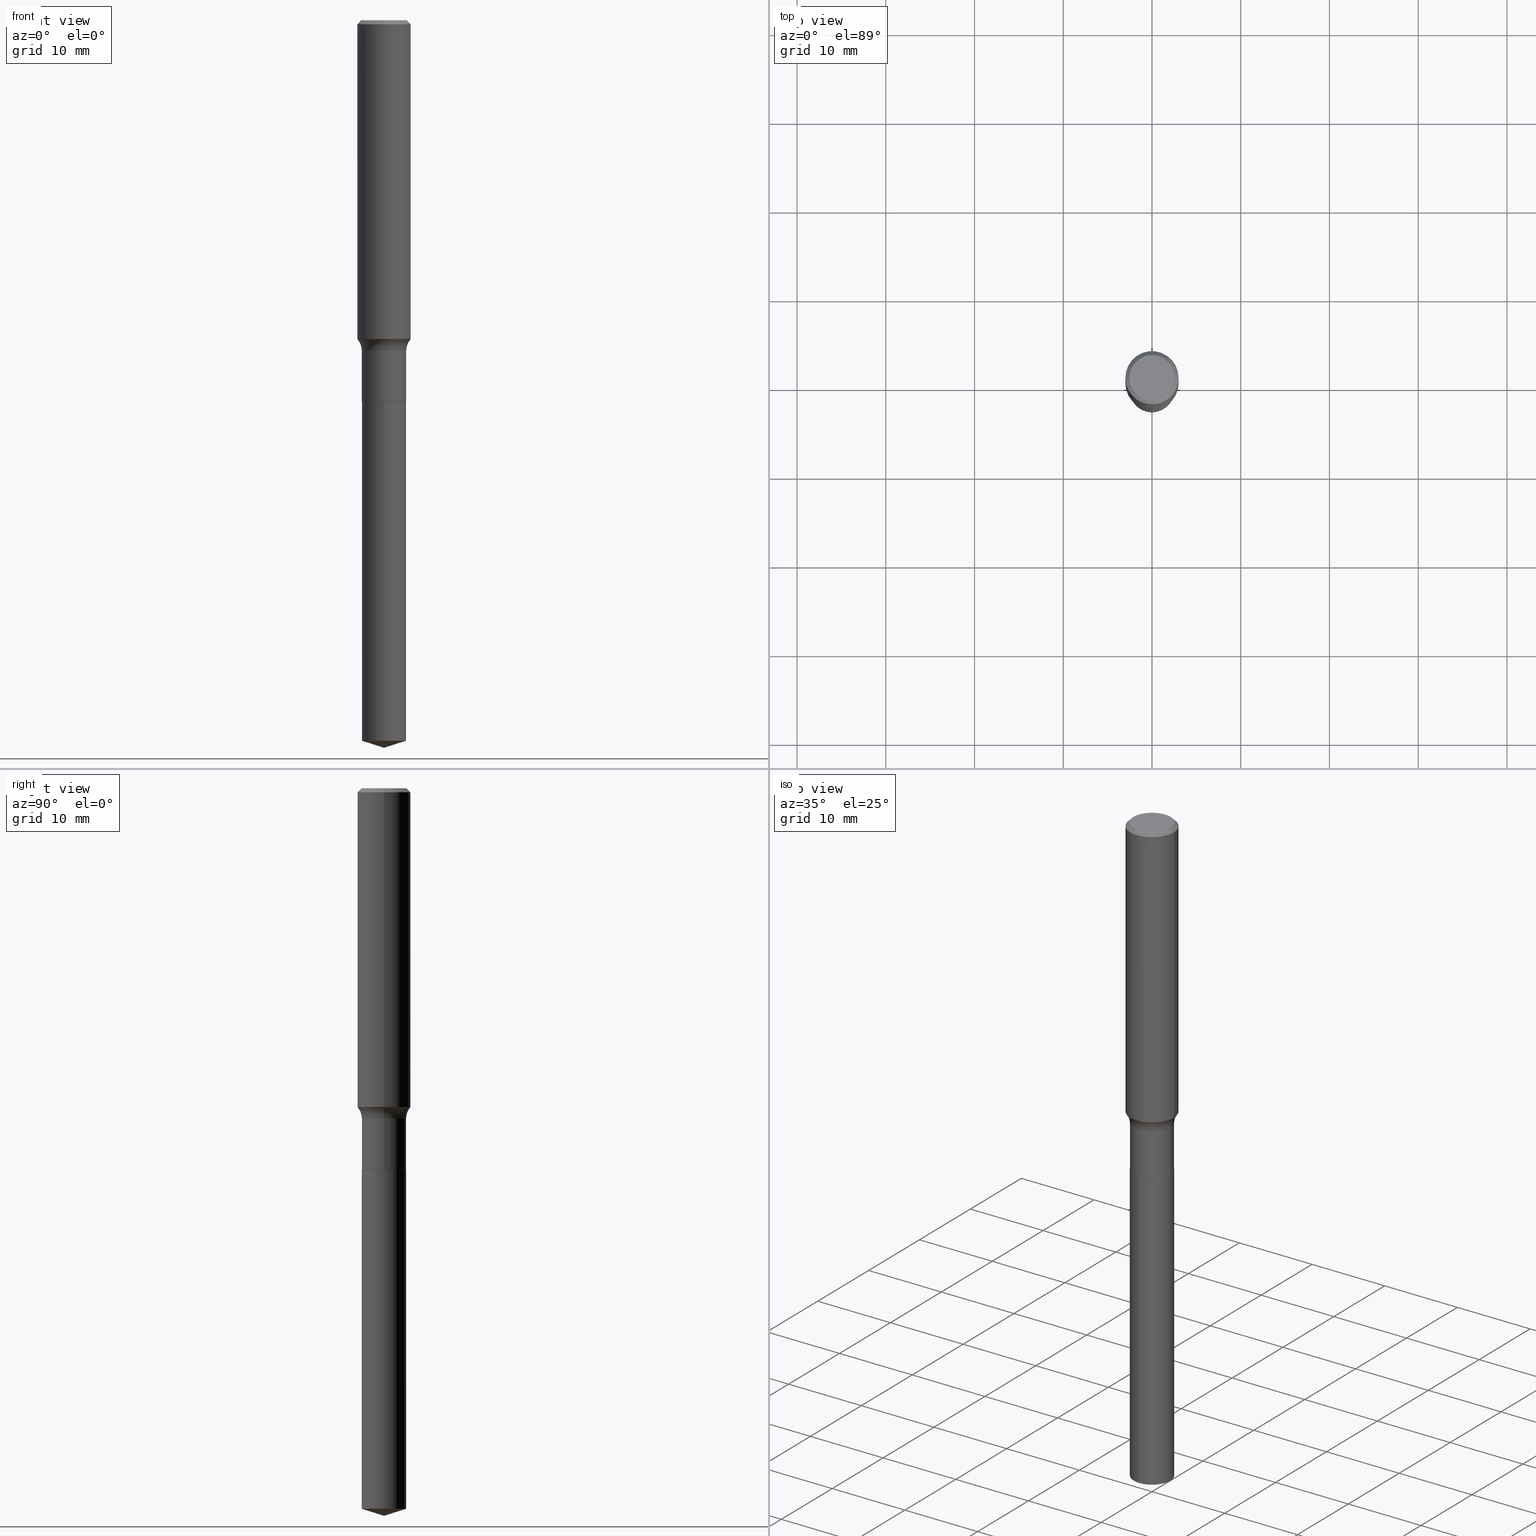
[diagram: canonical four-view strip — front | top / right | iso, engineering-drawing reading convention]
A machine part, canonical four-view strip (front | top / right | iso — engineering-drawing reading convention). The complete STEP part file that produces these views, byte-faithful:
ISO-10303-21;
HEADER;
FILE_DESCRIPTION (( 'STEP AP203' ),
    '1' );
FILE_NAME ('64120.STEP',
    '2024-04-19T15:15:44',
    ( '' ),
    ( '' ),
    'SwSTEP 2.0',
    'SolidWorks 2023',
    '' );
FILE_SCHEMA (( 'CONFIG_CONTROL_DESIGN' ));
ENDSEC;

DATA;
#1 = DIRECTION ( 'NONE',  ( -2.445468806185136597E-29, 3.491481338843145583E-15, 1.000000000000000000 ) ) ;
#2 = FACE_OUTER_BOUND ( 'NONE', #373, .T. ) ;
#3 = DIRECTION ( 'NONE',  ( -6.982962677686265922E-15, -1.000000000000000000, 2.774858297271979165E-15 ) ) ;
#4 = CONICAL_SURFACE ( 'NONE', #132, 0.1180999999999999966, 0.7853981633974453924 ) ;
#5 = CARTESIAN_POINT ( 'NONE',  ( 4.139934141990818357E-29, -5.910728758527561864E-15, -1.692900000000000071 ) ) ;
#6 = CARTESIAN_POINT ( 'NONE',  ( 0.000000000000000000, 0.000000000000000000, 0.000000000000000000 ) ) ;
#7 = PRODUCT_DEFINITION_SHAPE ( 'NONE', 'NONE',  #8 ) ;
#8 = PRODUCT_DEFINITION ( 'UNKNOWN', '', #452, #16 ) ;
#9 = DIRECTION ( 'NONE',  ( -1.000000000000000000, 7.105427357601001859E-15, 0.000000000000000000 ) ) ;
#10 = VERTEX_POINT ( 'NONE', #50 ) ;
#11 = VECTOR ( 'NONE', #182, 39.37007874015748143 ) ;
#12 = AXIS2_PLACEMENT_3D ( 'NONE', #260, #312, #301 ) ;
#13 = CARTESIAN_POINT ( 'NONE',  ( 4.139934141990818357E-29, -5.910728758527561864E-15, -1.692900000000000071 ) ) ;
#14 = ADVANCED_FACE ( 'NONE', ( #202 ), #322, .T. ) ;
#15 = ORIENTED_EDGE ( 'NONE', *, *, #200, .T. ) ;
#16 = DESIGN_CONTEXT ( 'detailed design', #418, 'design' ) ;
#17 = CYLINDRICAL_SURFACE ( 'NONE', #68, 0.09844999999999999585 ) ;
#18 = ORIENTED_EDGE ( 'NONE', *, *, #383, .F. ) ;
#19 = DIRECTION ( 'NONE',  ( -2.445468806185136877E-29, 3.491481338843145188E-15, 1.000000000000000000 ) ) ;
#20 = AXIS2_PLACEMENT_3D ( 'NONE', #6, #40, #303 ) ;
#21 = APPROVAL_ROLE ( '' ) ;
#22 = DIRECTION ( 'NONE',  ( 1.000000000000000000, 0.000000000000000000, 0.000000000000000000 ) ) ;
#23 = DATE_AND_TIME ( #247, #270 ) ;
#24 = EDGE_CURVE ( 'NONE', #407, #276, #267, .T. ) ;
#25 = CARTESIAN_POINT ( 'NONE',  ( 0.000000000000000000, 0.000000000000000000, 0.000000000000000000 ) ) ;
#26 = CC_DESIGN_PERSON_AND_ORGANIZATION_ASSIGNMENT ( #371, #290, ( #382 ) ) ;
#27 = AXIS2_PLACEMENT_3D ( 'NONE', #191, #347, #111 ) ;
#28 = ORIENTED_EDGE ( 'NONE', *, *, #122, .F. ) ;
#29 = DATE_TIME_ROLE ( 'creation_date' ) ;
#30 = DIRECTION ( 'NONE',  ( -2.445468806185136877E-29, 3.491481338843145188E-15, 1.000000000000000000 ) ) ;
#31 = EDGE_LOOP ( 'NONE', ( #323, #279, #296 ) ) ;
#32 = DIRECTION ( 'NONE',  ( -2.445514466918933997E-29, 3.491415950073500322E-15, 1.000000000000000000 ) ) ;
#33 = CARTESIAN_POINT ( 'NONE',  ( -0.09844999999999995421, -4.815090877279988422E-15, -1.466500000000000137 ) ) ;
#34 = CLOSED_SHELL ( 'NONE', ( #72, #56, #150, #169, #105, #137, #355, #14, #253, #162, #289, #300 ) ) ;
#35 = LOCAL_TIME ( 11, 15, 44.00000000000000000, #175 ) ;
#36 = DIRECTION ( 'NONE',  ( 1.000000000000000000, -6.982962677686266711E-15, 0.000000000000000000 ) ) ;
#37 = FACE_OUTER_BOUND ( 'NONE', #481, .T. ) ;
#38 = EDGE_CURVE ( 'NONE', #120, #379, #174, .T. ) ;
#39 = CARTESIAN_POINT ( 'NONE',  ( -6.874726756181714407E-16, -0.09845000000000590779, -1.692899999999999849 ) ) ;
#40 = DIRECTION ( 'NONE',  ( -2.445468806185136597E-29, 3.491481338843145583E-15, 1.000000000000000000 ) ) ;
#41 = EDGE_LOOP ( 'NONE', ( #98, #352, #488, #442 ) ) ;
#42 = APPROVAL ( #181, 'UNSPECIFIED' ) ;
#43 = AXIS2_PLACEMENT_3D ( 'NONE', #94, #173, #246 ) ;
#44 = VECTOR ( 'NONE', #75, 39.37007874015748143 ) ;
#45 = FACE_OUTER_BOUND ( 'NONE', #475, .T. ) ;
#46 = DIRECTION ( 'NONE',  ( 1.000000000000000000, -6.982962677686268288E-15, 4.883557194083114022E-29 ) ) ;
#47 = EDGE_LOOP ( 'NONE', ( #277, #362 ) ) ;
#48 = EDGE_CURVE ( 'NONE', #276, #407, #51, .T. ) ;
#49 = DIRECTION ( 'NONE',  ( -2.445468806185136597E-29, 3.491481338843145583E-15, 1.000000000000000000 ) ) ;
#50 = CARTESIAN_POINT ( 'NONE',  ( -0.09844999999999999585, -4.815090877279988422E-15, -1.692400000000000126 ) ) ;
#51 = CIRCLE ( 'NONE', #258, 0.09844999999999995421 ) ;
#52 = AXIS2_PLACEMENT_3D ( 'NONE', #93, #167, #197 ) ;
#53 = CARTESIAN_POINT ( 'NONE',  ( 0.09844999999999998197, -6.874726756182128559E-16, 4.800596035771097813E-30 ) ) ;
#54 = ORIENTED_EDGE ( 'NONE', *, *, #469, .F. ) ;
#55 = CARTESIAN_POINT ( 'NONE',  ( -8.838532006829453143E-28, 1.261858720607650357E-13, 36.14177874015747705 ) ) ;
#56 = ADVANCED_FACE ( 'NONE', ( #73 ), #4, .T. ) ;
#57 = PERSON_AND_ORGANIZATION ( #342, #60 ) ;
#58 = APPLICATION_CONTEXT ( 'configuration controlled 3d designs of mechanical parts and assemblies' ) ;
#59 = CALENDAR_DATE ( 2024, 19, 4 ) ;
#60 = ORGANIZATION ( 'UNSPECIFIED', 'UNSPECIFIED', '' ) ;
#61 = ORIENTED_EDGE ( 'NONE', *, *, #62, .T. ) ;
#62 = EDGE_CURVE ( 'NONE', #120, #485, #223, .T. ) ;
#63 = APPROVAL_ROLE ( '' ) ;
#64 = CARTESIAN_POINT ( 'NONE',  ( 0.09844999999999999585, -6.596455693476352920E-15, -1.692400000000000126 ) ) ;
#65 = PERSON_AND_ORGANIZATION_ROLE ( 'design_supplier' ) ;
#66 = ORIENTED_EDGE ( 'NONE', *, *, #397, .T. ) ;
#67 = APPROVAL_STATUS ( 'not_yet_approved' ) ;
#68 = AXIS2_PLACEMENT_3D ( 'NONE', #275, #438, #434 ) ;
#69 = ORIENTED_EDGE ( 'NONE', *, *, #365, .F. ) ;
#70 = DIRECTION ( 'NONE',  ( -1.000000000000000000, 6.982962677686266711E-15, 0.000000000000000000 ) ) ;
#71 = CARTESIAN_POINT ( 'NONE',  ( 0.1764499999999999680, -6.352401147891214888E-15, -1.466500000000000137 ) ) ;
#72 = ADVANCED_FACE ( 'NONE', ( #2 ), #165, .T. ) ;
#73 = FACE_OUTER_BOUND ( 'NONE', #104, .T. ) ;
#74 = DIRECTION ( 'NONE',  ( -1.000000000000000000, 6.982962677686265922E-15, -4.876176775795935793E-29 ) ) ;
#75 = DIRECTION ( 'NONE',  ( -2.445468806185136877E-29, 3.491481338843145188E-15, 1.000000000000000000 ) ) ;
#76 = CIRCLE ( 'NONE', #466, 0.1003850000000000020 ) ;
#77 = SHAPE_DEFINITION_REPRESENTATION ( #7, #391 ) ;
#78 = EDGE_CURVE ( 'NONE', #415, #120, #116, .T. ) ;
#79 = FACE_OUTER_BOUND ( 'NONE', #41, .T. ) ;
#80 = DIRECTION ( 'NONE',  ( -2.445514466918933997E-29, 3.491415950073500322E-15, 1.000000000000000000 ) ) ;
#81 = APPROVAL ( #67, 'UNSPECIFIED' ) ;
#82 = CARTESIAN_POINT ( 'NONE',  ( 0.1181000000000000799, -8.246878922347486570E-16, 5.758764772215004644E-30 ) ) ;
#83 = CARTESIAN_POINT ( 'NONE',  ( 0.1180999999999999966, -8.720764054544246253E-16, -0.01771500000000011607 ) ) ;
#84 = VERTEX_POINT ( 'NONE', #193 ) ;
#85 = CIRCLE ( 'NONE', #52, 0.09794999999999999540 ) ;
#86 = LINE ( 'NONE', #83, #350 ) ;
#87 = ORIENTED_EDGE ( 'NONE', *, *, #369, .T. ) ;
#88 = FACE_OUTER_BOUND ( 'NONE', #411, .T. ) ;
#89 = ORIENTED_EDGE ( 'NONE', *, *, #283, .T. ) ;
#90 = EDGE_LOOP ( 'NONE', ( #424, #257, #291, #15 ) ) ;
#91 = DIRECTION ( 'NONE',  ( 1.000000000000000000, -6.982962677686266711E-15, 0.000000000000000000 ) ) ;
#92 = AXIS2_PLACEMENT_3D ( 'NONE', #307, #194, #387 ) ;
#93 = CARTESIAN_POINT ( 'NONE',  ( 4.139934141990818357E-29, -5.910728758527561864E-15, -1.692900000000000071 ) ) ;
#94 = CARTESIAN_POINT ( 'NONE',  ( 3.459698289128462088E-29, -4.939532241821241999E-15, -1.414738262200733399 ) ) ;
#95 = VERTEX_POINT ( 'NONE', #349 ) ;
#96 = COORDINATED_UNIVERSAL_TIME_OFFSET ( 5, 0, .BEHIND. ) ;
#97 = MECHANICAL_CONTEXT ( 'NONE', #58, 'mechanical' ) ;
#98 = ORIENTED_EDGE ( 'NONE', *, *, #397, .F. ) ;
#99 = PERSON_AND_ORGANIZATION_ROLE ( 'creator' ) ;
#100 = AXIS2_PLACEMENT_3D ( 'NONE', #13, #199, #287 ) ;
#101 = PERSON_AND_ORGANIZATION_ROLE ( 'classification_officer' ) ;
#102 = ORIENTED_EDGE ( 'NONE', *, *, #24, .F. ) ;
#103 =( LENGTH_UNIT ( ) NAMED_UNIT ( * ) SI_UNIT ( $, .METRE. ) );
#104 = EDGE_LOOP ( 'NONE', ( #154, #384, #235, #343 ) ) ;
#105 = ADVANCED_FACE ( 'NONE', ( #110 ), #338, .T. ) ;
#106 = AXIS2_PLACEMENT_3D ( 'NONE', #461, #433, #222 ) ;
#107 = CYLINDRICAL_SURFACE ( 'NONE', #293, 0.09844999999999998197 ) ;
#108 = DIRECTION ( 'NONE',  ( -2.445514466918933997E-29, 3.491415950073500322E-15, 1.000000000000000000 ) ) ;
#109 = ORIENTED_EDGE ( 'NONE', *, *, #24, .T. ) ;
#110 = FACE_OUTER_BOUND ( 'NONE', #357, .T. ) ;
#111 = DIRECTION ( 'NONE',  ( 1.000000000000000000, -6.982962677686270655E-15, 0.000000000000000000 ) ) ;
#112 = EDGE_CURVE ( 'NONE', #195, #419, #385, .T. ) ;
#113 = CARTESIAN_POINT ( 'NONE',  ( 3.586280004270503451E-29, -5.120257383413473493E-15, -1.466500000000000137 ) ) ;
#114 = CIRCLE ( 'NONE', #294, 0.07800000000000002764 ) ;
#115 = ORIENTED_EDGE ( 'NONE', *, *, #375, .F. ) ;
#116 = LINE ( 'NONE', #232, #422 ) ;
#117 = DIRECTION ( 'NONE',  ( -2.445514466918933997E-29, 3.491415950073500322E-15, 1.000000000000000000 ) ) ;
#118 = DIRECTION ( 'NONE',  ( -6.659769872151615522E-15, -0.9537169507482243791, 0.3007057995042810017 ) ) ;
#119 = CARTESIAN_POINT ( 'NONE',  ( 4.332147990156998495E-31, -6.185159191760672860E-17, -0.01771500000000011607 ) ) ;
#120 = VERTEX_POINT ( 'NONE', #335 ) ;
#121 = DIRECTION ( 'NONE',  ( 0.7071067811866199593, -2.468850131083015945E-15, 0.7071067811864750752 ) ) ;
#122 = EDGE_CURVE ( 'NONE', #415, #379, #368, .T. ) ;
#123 = ORIENTED_EDGE ( 'NONE', *, *, #305, .T. ) ;
#124 = AXIS2_PLACEMENT_3D ( 'NONE', #468, #274, #221 ) ;
#125 = LINE ( 'NONE', #324, #413 ) ;
#126 = ORIENTED_EDGE ( 'NONE', *, *, #292, .F. ) ;
#127 = CARTESIAN_POINT ( 'NONE',  ( 4.138711407587726116E-29, -5.908983017858140360E-15, -1.692400000000000126 ) ) ;
#128 = VERTEX_POINT ( 'NONE', #64 ) ;
#129 = EDGE_CURVE ( 'NONE', #402, #195, #457, .T. ) ;
#130 = EDGE_LOOP ( 'NONE', ( #370, #405, #54, #192 ) ) ;
#131 = CARTESIAN_POINT ( 'NONE',  ( 7.894854353554394509E-29, -1.127133811162228082E-14, -3.228299999999999947 ) ) ;
#132 = AXIS2_PLACEMENT_3D ( 'NONE', #464, #428, #70 ) ;
#133 = EDGE_CURVE ( 'NONE', #379, #354, #151, .T. ) ;
#134 = LENGTH_MEASURE_WITH_UNIT ( LENGTH_MEASURE( 0.02539999999999999897 ), #103 );
#135 = CARTESIAN_POINT ( 'NONE',  ( 7.894855709197351992E-29, -1.127133811162228397E-14, -3.228299999999999947 ) ) ;
#136 = SECURITY_CLASSIFICATION_LEVEL ( 'unclassified' ) ;
#137 = ADVANCED_FACE ( 'NONE', ( #219 ), #107, .T. ) ;
#138 = DIRECTION ( 'NONE',  ( 1.000000000000000000, -6.982962677686266711E-15, 4.876176775795935793E-29 ) ) ;
#139 = CIRCLE ( 'NONE', #430, 0.1180999999999999966 ) ;
#140 = DIRECTION ( 'NONE',  ( 0.000000000000000000, 0.000000000000000000, 1.000000000000000000 ) ) ;
#141 = TOROIDAL_SURFACE ( 'NONE', #380, 0.1764499999999999680, 0.07800000000000002764 ) ;
#142 = ORIENTED_EDGE ( 'NONE', *, *, #48, .F. ) ;
#143 = ORIENTED_EDGE ( 'NONE', *, *, #133, .T. ) ;
#144 = EDGE_CURVE ( 'NONE', #354, #485, #327, .T. ) ;
#145 = CARTESIAN_POINT ( 'NONE',  ( 7.818865434549479088E-29, -1.116307118700914191E-14, -3.197258834234863567 ) ) ;
#146 = CARTESIAN_POINT ( 'NONE',  ( 7.818865434549479088E-29, -1.116307118700914191E-14, -3.197258834234863567 ) ) ;
#147 = CIRCLE ( 'NONE', #332, 0.09844999999999999585 ) ;
#148 = MANIFOLD_SOLID_BREP ( 'Body-Move/Copy2[1]', #318 ) ;
#149 = CARTESIAN_POINT ( 'NONE',  ( 4.332147990156998495E-31, -6.185159191760672860E-17, -0.01771500000000011607 ) ) ;
#150 = ADVANCED_FACE ( 'NONE', ( #393 ), #189, .T. ) ;
#151 = LINE ( 'NONE', #230, #388 ) ;
#152 = CARTESIAN_POINT ( 'NONE',  ( 3.006365662761078129E-46, -4.292293396963677838E-32, -1.229361689324070654E-17 ) ) ;
#153 = CC_DESIGN_DATE_AND_TIME_ASSIGNMENT ( #416, #29, ( #8 ) ) ;
#154 = ORIENTED_EDGE ( 'NONE', *, *, #215, .F. ) ;
#155 = DIRECTION ( 'NONE',  ( -2.445468806185136597E-29, 3.491481338843145583E-15, 1.000000000000000000 ) ) ;
#156 = DATE_AND_TIME ( #389, #229 ) ;
#157 = DIRECTION ( 'NONE',  ( -6.982962677686265922E-15, -1.000000000000000000, 2.774858297271979165E-15 ) ) ;
#158 = TOROIDAL_SURFACE ( 'NONE', #359, 0.1764499999999999680, 0.07800000000000002764 ) ;
#159 = AXIS2_PLACEMENT_3D ( 'NONE', #55, #476, #236 ) ;
#160 = LINE ( 'NONE', #82, #298 ) ;
#161 = ORIENTED_EDGE ( 'NONE', *, *, #336, .T. ) ;
#162 = ADVANCED_FACE ( 'NONE', ( #427 ), #351, .F. ) ;
#163 = DIRECTION ( 'NONE',  ( -0.7071067811866199593, 7.493145998870616062E-15, 0.7071067811864750752 ) ) ;
#164 = CARTESIAN_POINT ( 'NONE',  ( 3.459698289128462088E-29, -4.939532241821241999E-15, -1.414738262200733399 ) ) ;
#165 = CONICAL_SURFACE ( 'NONE', #306, 0.09794999999999999540, 0.7853981633975507526 ) ;
#166 = APPROVAL_PERSON_ORGANIZATION ( #179, #81, #21 ) ;
#167 = DIRECTION ( 'NONE',  ( -2.445468806185136597E-29, 3.491481338843145583E-15, 1.000000000000000000 ) ) ;
#168 = ORIENTED_EDGE ( 'NONE', *, *, #456, .T. ) ;
#169 = ADVANCED_FACE ( 'NONE', ( #79 ), #158, .F. ) ;
#170 = CARTESIAN_POINT ( 'NONE',  ( 3.586280004270503451E-29, -5.120257383413473493E-15, -1.466500000000000137 ) ) ;
#171 = EDGE_CURVE ( 'NONE', #402, #477, #160, .T. ) ;
#172 = CARTESIAN_POINT ( 'NONE',  ( -0.1764499999999999680, -3.866504726164776746E-15, -1.466500000000000137 ) ) ;
#173 = DIRECTION ( 'NONE',  ( -2.445468806185136597E-29, 3.491481338843145583E-15, 1.000000000000000000 ) ) ;
#174 = CIRCLE ( 'NONE', #210, 0.09844999999999999585 ) ;
#175 = COORDINATED_UNIVERSAL_TIME_OFFSET ( 5, 0, .BEHIND. ) ;
#176 =( NAMED_UNIT ( * ) PLANE_ANGLE_UNIT ( ) SI_UNIT ( $, .RADIAN. ) );
#177 = DIRECTION ( 'NONE',  ( 6.776566513254240782E-15, 0.9537169507482265995, 0.3007057995042743959 ) ) ;
#178 = APPROVAL_STATUS ( 'not_yet_approved' ) ;
#179 = PERSON_AND_ORGANIZATION ( #342, #60 ) ;
#180 = CIRCLE ( 'NONE', #458, 0.1003850000000000020 ) ;
#181 = APPROVAL_STATUS ( 'not_yet_approved' ) ;
#182 = DIRECTION ( 'NONE',  ( -2.445468806185136877E-29, 3.491481338843145188E-15, 1.000000000000000000 ) ) ;
#183 = DIRECTION ( 'NONE',  ( 1.000000000000000000, -6.982962677686268288E-15, 0.000000000000000000 ) ) ;
#184 = DIRECTION ( 'NONE',  ( 1.000000000000000000, -6.982962677686270655E-15, 0.000000000000000000 ) ) ;
#185 = COORDINATED_UNIVERSAL_TIME_OFFSET ( 5, 0, .BEHIND. ) ;
#186 = DIRECTION ( 'NONE',  ( 1.000000000000000000, -6.982962677686270655E-15, 0.000000000000000000 ) ) ;
#187 = LOCAL_TIME ( 11, 15, 44.00000000000000000, #333 ) ;
#188 = DIRECTION ( 'NONE',  ( -2.445514466918933997E-29, 3.491415950073500322E-15, 1.000000000000000000 ) ) ;
#189 = CYLINDRICAL_SURFACE ( 'NONE', #20, 0.1181000000000000799 ) ;
#190 = DIRECTION ( 'NONE',  ( -2.445514466918933997E-29, 3.491415950073500322E-15, 1.000000000000000000 ) ) ;
#191 = CARTESIAN_POINT ( 'NONE',  ( 4.139934141990818357E-29, -5.910728758527561864E-15, -1.692900000000000071 ) ) ;
#192 = ORIENTED_EDGE ( 'NONE', *, *, #171, .F. ) ;
#193 = CARTESIAN_POINT ( 'NONE',  ( 0.1003850000000000020, -7.803837484803599345E-16, -1.229361689323552810E-17 ) ) ;
#194 = DIRECTION ( 'NONE',  ( 2.445468806185136597E-29, -3.491481338843145583E-15, -1.000000000000000000 ) ) ;
#195 = VERTEX_POINT ( 'NONE', #390 ) ;
#196 = AXIS2_PLACEMENT_3D ( 'NONE', #489, #1, #186 ) ;
#197 = DIRECTION ( 'NONE',  ( 1.000000000000000000, -6.982962677686270655E-15, 0.000000000000000000 ) ) ;
#198 = ORIENTED_EDGE ( 'NONE', *, *, #435, .T. ) ;
#199 = DIRECTION ( 'NONE',  ( 2.445514466918933436E-29, -3.491415950073500322E-15, -1.000000000000000000 ) ) ;
#200 = EDGE_CURVE ( 'NONE', #419, #477, #139, .T. ) ;
#201 = CARTESIAN_POINT ( 'NONE',  ( 3.006365662761078129E-46, -4.292293396963677838E-32, -1.229361689324070654E-17 ) ) ;
#202 = FACE_OUTER_BOUND ( 'NONE', #207, .T. ) ;
#203 = CONICAL_SURFACE ( 'NONE', #12, 124.8659371009117791, 1.265363707695884132 ) ;
#204 = FACE_OUTER_BOUND ( 'NONE', #31, .T. ) ;
#205 = CC_DESIGN_PERSON_AND_ORGANIZATION_ASSIGNMENT ( #376, #101, ( #250 ) ) ;
#206 = ORIENTED_EDGE ( 'NONE', *, *, #336, .F. ) ;
#207 = EDGE_LOOP ( 'NONE', ( #463, #66, #436, #263 ) ) ;
#208 = LINE ( 'NONE', #478, #217 ) ;
#209 =( NAMED_UNIT ( * ) SI_UNIT ( $, .STERADIAN. ) SOLID_ANGLE_UNIT ( ) );
#210 = AXIS2_PLACEMENT_3D ( 'NONE', #145, #80, #460 ) ;
#211 = CIRCLE ( 'NONE', #406, 0.1181000000000001632 ) ;
#212 = CC_DESIGN_APPROVAL ( #311, ( #250 ) ) ;
#213 = PERSON_AND_ORGANIZATION ( #342, #60 ) ;
#214 = DIRECTION ( 'NONE',  ( 1.000000000000000000, -6.982962677686266711E-15, 4.876176775795936353E-29 ) ) ;
#215 = EDGE_CURVE ( 'NONE', #84, #282, #76, .T. ) ;
#216 = AXIS2_PLACEMENT_3D ( 'NONE', #278, #358, #471 ) ;
#217 = VECTOR ( 'NONE', #121, 39.37007874015748143 ) ;
#218 = PRODUCT_RELATED_PRODUCT_CATEGORY ( 'detail', '', ( #382 ) ) ;
#219 = FACE_OUTER_BOUND ( 'NONE', #286, .T. ) ;
#220 = ORIENTED_EDGE ( 'NONE', *, *, #369, .F. ) ;
#221 = DIRECTION ( 'NONE',  ( 1.000000000000000000, -6.982962677686266711E-15, 4.876176775795935793E-29 ) ) ;
#222 = DIRECTION ( 'NONE',  ( 1.000000000000000000, -6.982962677686265922E-15, 4.876176775795935793E-29 ) ) ;
#223 = LINE ( 'NONE', #39, #331 ) ;
#224 = CARTESIAN_POINT ( 'NONE',  ( -0.1180999999999999966, 7.628363003171412752E-16, -0.01771500000000011607 ) ) ;
#225 = EDGE_CURVE ( 'NONE', #282, #419, #341, .T. ) ;
#226 = APPROVAL_ROLE ( '' ) ;
#227 = CARTESIAN_POINT ( 'NONE',  ( 1.503182831380539065E-46, -2.146146698481838919E-32, -6.146808446620353272E-18 ) ) ;
#228 = APPROVAL_PERSON_ORGANIZATION ( #254, #42, #63 ) ;
#229 = LOCAL_TIME ( 11, 15, 44.00000000000000000, #185 ) ;
#230 = CARTESIAN_POINT ( 'NONE',  ( 6.995293233558598215E-16, 0.09844999999999408391, -1.692900000000000293 ) ) ;
#231 = DIRECTION ( 'NONE',  ( -2.445468806185136597E-29, 3.491481338843145583E-15, 1.000000000000000000 ) ) ;
#232 = CARTESIAN_POINT ( 'NONE',  ( 7.894699755441902862E-29, -1.127155950491854831E-14, -3.228299999999999947 ) ) ;
#233 = DIRECTION ( 'NONE',  ( 1.000000000000000000, -6.982962677686266711E-15, 4.875668750515086816E-29 ) ) ;
#234 = ORIENTED_EDGE ( 'NONE', *, *, #215, .T. ) ;
#235 = ORIENTED_EDGE ( 'NONE', *, *, #469, .T. ) ;
#236 = DIRECTION ( 'NONE',  ( -6.982962677686265922E-15, -1.000000000000000000, 3.500519750498796729E-15 ) ) ;
#237 = AXIS2_PLACEMENT_3D ( 'NONE', #345, #188, #157 ) ;
#238 = AXIS2_PLACEMENT_3D ( 'NONE', #119, #321, #91 ) ;
#239 = CARTESIAN_POINT ( 'NONE',  ( 6.995293233558967993E-16, 0.09844999999999408391, -1.692900000000000293 ) ) ;
#240 = CYLINDRICAL_SURFACE ( 'NONE', #216, 0.09844999999999999585 ) ;
#241 = DIRECTION ( 'NONE',  ( 7.105427357601001859E-15, 1.000000000000000000, -3.491481338843145583E-15 ) ) ;
#242 = ORIENTED_EDGE ( 'NONE', *, *, #456, .F. ) ;
#243 = CIRCLE ( 'NONE', #320, 0.09844999999999999585 ) ;
#244 = DIRECTION ( 'NONE',  ( 1.000000000000000000, -6.982962677686266711E-15, 4.875668750515086816E-29 ) ) ;
#245 = ORIENTED_EDGE ( 'NONE', *, *, #365, .T. ) ;
#246 = DIRECTION ( 'NONE',  ( 1.000000000000000000, -6.982962677686270655E-15, 0.000000000000000000 ) ) ;
#247 = CALENDAR_DATE ( 2024, 19, 4 ) ;
#248 = PERSON_AND_ORGANIZATION ( #342, #60 ) ;
#249 = CC_DESIGN_APPROVAL ( #81, ( #8 ) ) ;
#250 = SECURITY_CLASSIFICATION ( '', '', #136 ) ;
#251 = CALENDAR_DATE ( 2024, 19, 4 ) ;
#252 = DIRECTION ( 'NONE',  ( -2.445468806185136597E-29, 3.491481338843145583E-15, 1.000000000000000000 ) ) ;
#253 = ADVANCED_FACE ( 'NONE', ( #344 ), #360, .T. ) ;
#254 = PERSON_AND_ORGANIZATION ( #342, #60 ) ;
#255 = ORIENTED_EDGE ( 'NONE', *, *, #305, .F. ) ;
#256 = ADVANCED_FACE ( 'NONE', ( #462 ), #203, .T. ) ;
#257 = ORIENTED_EDGE ( 'NONE', *, *, #435, .F. ) ;
#258 = AXIS2_PLACEMENT_3D ( 'NONE', #266, #346, #310 ) ;
#259 = AXIS2_PLACEMENT_3D ( 'NONE', #127, #353, #474 ) ;
#260 = CARTESIAN_POINT ( 'NONE',  ( -8.838532006829453143E-28, 1.261858720607650357E-13, 36.14177874015747705 ) ) ;
#261 = CARTESIAN_POINT ( 'NONE',  ( 0.000000000000000000, 0.000000000000000000, 0.000000000000000000 ) ) ;
#262 = DIRECTION ( 'NONE',  ( 2.438088387897960049E-29, -3.491481338843145188E-15, -1.000000000000000000 ) ) ;
#263 = ORIENTED_EDGE ( 'NONE', *, *, #200, .F. ) ;
#264 = CARTESIAN_POINT ( 'NONE',  ( -0.1181000000000000799, 8.391509709326788873E-16, -5.809262341591047988E-30 ) ) ;
#265 = DIRECTION ( 'NONE',  ( -6.982962677686265922E-15, -1.000000000000000000, 5.549716594543958330E-15 ) ) ;
#266 = CARTESIAN_POINT ( 'NONE',  ( 3.586280004270503451E-29, -5.120257383413473493E-15, -1.466500000000000137 ) ) ;
#267 = CIRCLE ( 'NONE', #490, 0.09844999999999995421 ) ;
#268 = DIRECTION ( 'NONE',  ( -0.7071067811865454633, 2.468850131082235367E-15, -0.7071067811865495711 ) ) ;
#269 = CIRCLE ( 'NONE', #27, 0.09794999999999999540 ) ;
#270 = LOCAL_TIME ( 11, 15, 44.00000000000000000, #96 ) ;
#271 = ORIENTED_EDGE ( 'NONE', *, *, #450, .F. ) ;
#272 = EDGE_CURVE ( 'NONE', #10, #276, #467, .T. ) ;
#273 = CARTESIAN_POINT ( 'NONE',  ( 0.09794999999999999540, -6.594709952806931417E-15, -1.692900000000000071 ) ) ;
#274 = DIRECTION ( 'NONE',  ( -2.445468806185136597E-29, 3.491481338843145583E-15, 1.000000000000000000 ) ) ;
#275 = CARTESIAN_POINT ( 'NONE',  ( 4.139934141990818357E-29, -5.910728758527561864E-15, -1.692900000000000071 ) ) ;
#276 = VERTEX_POINT ( 'NONE', #33 ) ;
#277 = ORIENTED_EDGE ( 'NONE', *, *, #292, .T. ) ;
#278 = CARTESIAN_POINT ( 'NONE',  ( 4.139934141990818357E-29, -5.910728758527561864E-15, -1.692900000000000071 ) ) ;
#279 = ORIENTED_EDGE ( 'NONE', *, *, #122, .T. ) ;
#280 =( GEOMETRIC_REPRESENTATION_CONTEXT ( 3 ) GLOBAL_UNCERTAINTY_ASSIGNED_CONTEXT ( ( #328 ) ) GLOBAL_UNIT_ASSIGNED_CONTEXT ( ( #421, #176, #209 ) ) REPRESENTATION_CONTEXT ( 'NONE', 'WORKASPACE' ) );
#281 = CARTESIAN_POINT ( 'NONE',  ( -0.1180999999999999966, -1.661540945936744916E-15, -0.01771500000000011607 ) ) ;
#282 = VERTEX_POINT ( 'NONE', #425 ) ;
#283 = EDGE_CURVE ( 'NONE', #402, #407, #372, .T. ) ;
#284 = DIRECTION ( 'NONE',  ( 1.000000000000000000, -6.982962677686265922E-15, 0.000000000000000000 ) ) ;
#285 = CARTESIAN_POINT ( 'NONE',  ( 0.000000000000000000, 0.000000000000000000, 0.000000000000000000 ) ) ;
#286 = EDGE_LOOP ( 'NONE', ( #448, #394, #168, #142 ) ) ;
#287 = DIRECTION ( 'NONE',  ( 6.982962677686265922E-15, 1.000000000000000000, -3.491415950073500322E-15 ) ) ;
#288 = DIMENSIONAL_EXPONENTS ( 1.000000000000000000, 0.000000000000000000, 0.000000000000000000, 0.000000000000000000, 0.000000000000000000, 0.000000000000000000, 0.000000000000000000 ) ;
#289 = ADVANCED_FACE ( 'NONE', ( #37 ), #392, .F. ) ;
#290 = PERSON_AND_ORGANIZATION_ROLE ( 'design_owner' ) ;
#291 = ORIENTED_EDGE ( 'NONE', *, *, #225, .T. ) ;
#292 = EDGE_CURVE ( 'NONE', #485, #354, #243, .T. ) ;
#293 = AXIS2_PLACEMENT_3D ( 'NONE', #261, #252, #138 ) ;
#294 = AXIS2_PLACEMENT_3D ( 'NONE', #172, #241, #9 ) ;
#295 = CC_DESIGN_PERSON_AND_ORGANIZATION_ASSIGNMENT ( #213, #65, ( #452 ) ) ;
#296 = ORIENTED_EDGE ( 'NONE', *, *, #38, .F. ) ;
#297 = CARTESIAN_POINT ( 'NONE',  ( 3.586280004270503451E-29, -5.120257383413473493E-15, -1.466500000000000137 ) ) ;
#298 = VECTOR ( 'NONE', #30, 39.37007874015748143 ) ;
#299 = LOCAL_TIME ( 11, 15, 44.00000000000000000, #412 ) ;
#300 = ADVANCED_FACE ( 'NONE', ( #337 ), #447, .T. ) ;
#301 = DIRECTION ( 'NONE',  ( -6.982962677686265922E-15, -1.000000000000000000, 3.500519750498796729E-15 ) ) ;
#302 = EDGE_LOOP ( 'NONE', ( #28, #348, #472 ) ) ;
#303 = DIRECTION ( 'NONE',  ( 1.000000000000000000, -6.982962677686266711E-15, 4.876176775795936353E-29 ) ) ;
#304 = DIRECTION ( 'NONE',  ( 1.000000000000000000, -6.982962677686269077E-15, 0.000000000000000000 ) ) ;
#305 = EDGE_CURVE ( 'NONE', #309, #95, #269, .T. ) ;
#306 = AXIS2_PLACEMENT_3D ( 'NONE', #5, #155, #184 ) ;
#307 = CARTESIAN_POINT ( 'NONE',  ( 4.332147990156998495E-31, -6.185159191760672860E-17, -0.01771500000000011607 ) ) ;
#308 = CC_DESIGN_SECURITY_CLASSIFICATION ( #250, ( #452 ) ) ;
#309 = VERTEX_POINT ( 'NONE', #273 ) ;
#310 = DIRECTION ( 'NONE',  ( 1.000000000000000000, -6.982962677686269077E-15, 0.000000000000000000 ) ) ;
#311 = APPROVAL ( #178, 'UNSPECIFIED' ) ;
#312 = DIRECTION ( 'NONE',  ( -2.445514466918933997E-29, 3.491415950073500322E-15, 1.000000000000000000 ) ) ;
#313 = ORIENTED_EDGE ( 'NONE', *, *, #144, .F. ) ;
#314 = MANIFOLD_SOLID_BREP ( 'Body-Move/Copy2[2]', #34 ) ;
#315 = DIRECTION ( 'NONE',  ( -2.445468806185136597E-29, 3.491481338843145583E-15, 1.000000000000000000 ) ) ;
#316 = CARTESIAN_POINT ( 'NONE',  ( 0.1181000000000001632, -5.764220134055991839E-15, -1.414738262200733399 ) ) ;
#317 = EDGE_CURVE ( 'NONE', #379, #120, #431, .T. ) ;
#318 = CLOSED_SHELL ( 'NONE', ( #453, #414, #256, #480, #325 ) ) ;
#319 = EDGE_LOOP ( 'NONE', ( #220, #245, #366, #115 ) ) ;
#320 = AXIS2_PLACEMENT_3D ( 'NONE', #459, #117, #3 ) ;
#321 = DIRECTION ( 'NONE',  ( -2.445468806185136597E-29, 3.491481338843145583E-15, 1.000000000000000000 ) ) ;
#322 = CYLINDRICAL_SURFACE ( 'NONE', #378, 0.1181000000000000799 ) ;
#323 = ORIENTED_EDGE ( 'NONE', *, *, #78, .F. ) ;
#324 = CARTESIAN_POINT ( 'NONE',  ( -0.09794999999999999540, -5.214752148850543863E-15, -1.692900000000000071 ) ) ;
#325 = ADVANCED_FACE ( 'NONE', ( #367 ), #399, .F. ) ;
#326 = FACE_OUTER_BOUND ( 'NONE', #400, .T. ) ;
#327 = CIRCLE ( 'NONE', #237, 0.09844999999999999585 ) ;
#328 = UNCERTAINTY_MEASURE_WITH_UNIT (LENGTH_MEASURE( 1.000000000000000082E-05 ), #421, 'distance_accuracy_value', 'NONE');
#329 = DATE_AND_TIME ( #59, #299 ) ;
#330 = DATE_AND_TIME ( #486, #187 ) ;
#331 = VECTOR ( 'NONE', #32, 39.37007874015748143 ) ;
#332 = AXIS2_PLACEMENT_3D ( 'NONE', #356, #315, #284 ) ;
#333 = COORDINATED_UNIVERSAL_TIME_OFFSET ( 5, 0, .BEHIND. ) ;
#334 = ORIENTED_EDGE ( 'NONE', *, *, #272, .T. ) ;
#335 = CARTESIAN_POINT ( 'NONE',  ( -6.874726756181345614E-16, -0.09845000000001113971, -3.197258834234863123 ) ) ;
#336 = EDGE_CURVE ( 'NONE', #128, #10, #473, .T. ) ;
#337 = FACE_OUTER_BOUND ( 'NONE', #319, .T. ) ;
#338 = CYLINDRICAL_SURFACE ( 'NONE', #124, 0.09844999999999998197 ) ;
#339 = AXIS2_PLACEMENT_3D ( 'NONE', #25, #140, #22 ) ;
#340 = APPROVAL_DATE_TIME ( #156, #311 ) ;
#341 = LINE ( 'NONE', #224, #423 ) ;
#342 = PERSON ( 'UNSPECIFIED', 'UNSPECIFIED', 'UNSPECIFIED', ('UNSPECIFIED'), ('UNSPECIFIED'), ('UNSPECIFIED') ) ;
#343 = ORIENTED_EDGE ( 'NONE', *, *, #225, .F. ) ;
#344 = FACE_OUTER_BOUND ( 'NONE', #90, .T. ) ;
#345 = CARTESIAN_POINT ( 'NONE',  ( 4.139934141990818357E-29, -5.910728758527561864E-15, -1.692900000000000071 ) ) ;
#346 = DIRECTION ( 'NONE',  ( -2.445468806185136597E-29, 3.491481338843145583E-15, 1.000000000000000000 ) ) ;
#347 = DIRECTION ( 'NONE',  ( -2.445468806185136597E-29, 3.491481338843145583E-15, 1.000000000000000000 ) ) ;
#348 = ORIENTED_EDGE ( 'NONE', *, *, #78, .T. ) ;
#349 = CARTESIAN_POINT ( 'NONE',  ( -0.09794999999999999540, -5.212102921676432662E-15, -1.692900000000000071 ) ) ;
#350 = VECTOR ( 'NONE', #396, 39.37007874015748143 ) ;
#351 = PLANE ( 'NONE',  #465 ) ;
#352 = ORIENTED_EDGE ( 'NONE', *, *, #383, .T. ) ;
#353 = DIRECTION ( 'NONE',  ( -2.445468806185136597E-29, 3.491481338843145583E-15, 1.000000000000000000 ) ) ;
#354 = VERTEX_POINT ( 'NONE', #239 ) ;
#355 = ADVANCED_FACE ( 'NONE', ( #45 ), #141, .F. ) ;
#356 = CARTESIAN_POINT ( 'NONE',  ( 4.138711407587726116E-29, -5.908983017858140360E-15, -1.692400000000000126 ) ) ;
#357 = EDGE_LOOP ( 'NONE', ( #161, #334, #102, #242 ) ) ;
#358 = DIRECTION ( 'NONE',  ( -2.445514466918933997E-29, 3.491415950073500322E-15, 1.000000000000000000 ) ) ;
#359 = AXIS2_PLACEMENT_3D ( 'NONE', #113, #386, #426 ) ;
#360 = CONICAL_SURFACE ( 'NONE', #92, 0.1180999999999999966, 0.7853981633974453924 ) ;
#361 = APPROVAL_PERSON_ORGANIZATION ( #57, #311, #226 ) ;
#362 = ORIENTED_EDGE ( 'NONE', *, *, #144, .T. ) ;
#363 = CARTESIAN_POINT ( 'NONE',  ( 0.1180999999999999966, -8.865394841523548556E-16, -0.01771500000000011607 ) ) ;
#364 = ORIENTED_EDGE ( 'NONE', *, *, #62, .F. ) ;
#365 = EDGE_CURVE ( 'NONE', #95, #309, #85, .T. ) ;
#366 = ORIENTED_EDGE ( 'NONE', *, *, #450, .T. ) ;
#367 = FACE_OUTER_BOUND ( 'NONE', #47, .T. ) ;
#368 = LINE ( 'NONE', #135, #404 ) ;
#369 = EDGE_CURVE ( 'NONE', #95, #10, #125, .T. ) ;
#370 = ORIENTED_EDGE ( 'NONE', *, *, #129, .T. ) ;
#371 = PERSON_AND_ORGANIZATION ( #342, #60 ) ;
#372 = CIRCLE ( 'NONE', #483, 0.07800000000000002764 ) ;
#373 = EDGE_LOOP ( 'NONE', ( #123, #87, #206, #271 ) ) ;
#374 = APPLICATION_PROTOCOL_DEFINITION ( 'international standard', 'config_control_design', 1994, #58 ) ;
#375 = EDGE_CURVE ( 'NONE', #10, #128, #147, .T. ) ;
#376 = PERSON_AND_ORGANIZATION ( #342, #60 ) ;
#377 = APPLICATION_PROTOCOL_DEFINITION ( 'international standard', 'config_control_design', 1994, #418 ) ;
#378 = AXIS2_PLACEMENT_3D ( 'NONE', #285, #444, #214 ) ;
#379 = VERTEX_POINT ( 'NONE', #401 ) ;
#380 = AXIS2_PLACEMENT_3D ( 'NONE', #170, #445, #46 ) ;
#381 = APPROVAL_DATE_TIME ( #330, #81 ) ;
#382 = PRODUCT ( '64120', '64120', '', ( #97 ) ) ;
#383 = EDGE_CURVE ( 'NONE', #195, #276, #114, .T. ) ;
#384 = ORIENTED_EDGE ( 'NONE', *, *, #484, .T. ) ;
#385 = LINE ( 'NONE', #264, #11 ) ;
#386 = DIRECTION ( 'NONE',  ( -2.445468806185136597E-29, 3.491481338843145583E-15, 1.000000000000000000 ) ) ;
#387 = DIRECTION ( 'NONE',  ( -1.000000000000000000, 6.982962677686266711E-15, 0.000000000000000000 ) ) ;
#388 = VECTOR ( 'NONE', #190, 39.37007874015748143 ) ;
#389 = CALENDAR_DATE ( 2024, 19, 4 ) ;
#390 = CARTESIAN_POINT ( 'NONE',  ( -0.1181000000000001632, -4.100381270888563013E-15, -1.414738262200733399 ) ) ;
#391 = ADVANCED_BREP_SHAPE_REPRESENTATION ( '64120', ( #148, #314, #339 ), #280 ) ;
#392 = PLANE ( 'NONE',  #106 ) ;
#393 = FACE_OUTER_BOUND ( 'NONE', #130, .T. ) ;
#394 = ORIENTED_EDGE ( 'NONE', *, *, #375, .T. ) ;
#395 = AXIS2_PLACEMENT_3D ( 'NONE', #146, #108, #265 ) ;
#396 = DIRECTION ( 'NONE',  ( 0.7071067811865454633, -7.319954787623248157E-15, -0.7071067811865495711 ) ) ;
#397 = EDGE_CURVE ( 'NONE', #195, #402, #211, .T. ) ;
#398 = ORIENTED_EDGE ( 'NONE', *, *, #129, .F. ) ;
#399 = PLANE ( 'NONE',  #100 ) ;
#400 = EDGE_LOOP ( 'NONE', ( #441, #479, #61, #313 ) ) ;
#401 = CARTESIAN_POINT ( 'NONE',  ( 6.995293233558965035E-16, 0.09844999999998881035, -3.197258834234864011 ) ) ;
#402 = VERTEX_POINT ( 'NONE', #316 ) ;
#403 = LINE ( 'NONE', #53, #446 ) ;
#404 = VECTOR ( 'NONE', #177, 39.37007874015748143 ) ;
#405 = ORIENTED_EDGE ( 'NONE', *, *, #112, .T. ) ;
#406 = AXIS2_PLACEMENT_3D ( 'NONE', #164, #49, #443 ) ;
#407 = VERTEX_POINT ( 'NONE', #408 ) ;
#408 = CARTESIAN_POINT ( 'NONE',  ( 0.09844999999999995421, -5.807730059031686053E-15, -1.466500000000000137 ) ) ;
#409 = CC_DESIGN_PERSON_AND_ORGANIZATION_ASSIGNMENT ( #248, #99, ( #8 ) ) ;
#410 = DATE_TIME_ROLE ( 'classification_date' ) ;
#411 = EDGE_LOOP ( 'NONE', ( #451, #143, #126, #364 ) ) ;
#412 = COORDINATED_UNIVERSAL_TIME_OFFSET ( 5, 0, .BEHIND. ) ;
#413 = VECTOR ( 'NONE', #163, 39.37007874015748143 ) ;
#414 = ADVANCED_FACE ( 'NONE', ( #204 ), #437, .T. ) ;
#415 = VERTEX_POINT ( 'NONE', #131 ) ;
#416 = DATE_AND_TIME ( #251, #35 ) ;
#417 = PERSON_AND_ORGANIZATION ( #342, #60 ) ;
#418 = APPLICATION_CONTEXT ( 'configuration controlled 3d designs of mechanical parts and assemblies' ) ;
#419 = VERTEX_POINT ( 'NONE', #281 ) ;
#420 = DIRECTION ( 'NONE',  ( -2.445468806185136597E-29, 3.491481338843145583E-15, 1.000000000000000000 ) ) ;
#421 =( CONVERSION_BASED_UNIT ( 'INCH', #134 ) LENGTH_UNIT ( ) NAMED_UNIT ( #288 ) );
#422 = VECTOR ( 'NONE', #118, 39.37007874015748854 ) ;
#423 = VECTOR ( 'NONE', #268, 39.37007874015748143 ) ;
#424 = ORIENTED_EDGE ( 'NONE', *, *, #484, .F. ) ;
#425 = CARTESIAN_POINT ( 'NONE',  ( -0.1003850000000000020, 7.319105043583384717E-16, -1.229361689324571704E-17 ) ) ;
#426 = DIRECTION ( 'NONE',  ( 1.000000000000000000, -6.982962677686268288E-15, 4.883557194083114022E-29 ) ) ;
#427 = FACE_OUTER_BOUND ( 'NONE', #455, .T. ) ;
#428 = DIRECTION ( 'NONE',  ( 2.445468806185136597E-29, -3.491481338843145583E-15, -1.000000000000000000 ) ) ;
#429 = CC_DESIGN_PERSON_AND_ORGANIZATION_ASSIGNMENT ( #417, #482, ( #452 ) ) ;
#430 = AXIS2_PLACEMENT_3D ( 'NONE', #149, #470, #36 ) ;
#431 = CIRCLE ( 'NONE', #395, 0.09844999999999999585 ) ;
#432 = DIRECTION ( 'NONE',  ( -6.982962677686266711E-15, -1.000000000000000000, 3.491481338843145583E-15 ) ) ;
#433 = DIRECTION ( 'NONE',  ( -2.438088387897960049E-29, 3.491481338843145188E-15, 1.000000000000000000 ) ) ;
#434 = DIRECTION ( 'NONE',  ( -6.982962677686265922E-15, -1.000000000000000000, 2.774858297271979165E-15 ) ) ;
#435 = EDGE_CURVE ( 'NONE', #282, #84, #180, .T. ) ;
#436 = ORIENTED_EDGE ( 'NONE', *, *, #171, .T. ) ;
#437 = CONICAL_SURFACE ( 'NONE', #159, 124.8659371009117791, 1.265363707695884132 ) ;
#438 = DIRECTION ( 'NONE',  ( -2.445514466918933997E-29, 3.491415950073500322E-15, 1.000000000000000000 ) ) ;
#439 = CC_DESIGN_APPROVAL ( #42, ( #452 ) ) ;
#440 = DIRECTION ( 'NONE',  ( -2.445468806185136597E-29, 3.491481338843145583E-15, 1.000000000000000000 ) ) ;
#441 = ORIENTED_EDGE ( 'NONE', *, *, #133, .F. ) ;
#442 = ORIENTED_EDGE ( 'NONE', *, *, #283, .F. ) ;
#443 = DIRECTION ( 'NONE',  ( 1.000000000000000000, -6.982962677686270655E-15, 0.000000000000000000 ) ) ;
#444 = DIRECTION ( 'NONE',  ( -2.445468806185136597E-29, 3.491481338843145583E-15, 1.000000000000000000 ) ) ;
#445 = DIRECTION ( 'NONE',  ( -2.445468806185136597E-29, 3.491481338843145583E-15, 1.000000000000000000 ) ) ;
#446 = VECTOR ( 'NONE', #19, 39.37007874015748143 ) ;
#447 = CONICAL_SURFACE ( 'NONE', #196, 0.09794999999999999540, 0.7853981633975507526 ) ;
#448 = ORIENTED_EDGE ( 'NONE', *, *, #272, .F. ) ;
#449 = APPROVAL_DATE_TIME ( #329, #42 ) ;
#450 = EDGE_CURVE ( 'NONE', #309, #128, #208, .T. ) ;
#451 = ORIENTED_EDGE ( 'NONE', *, *, #38, .T. ) ;
#452 = PRODUCT_DEFINITION_FORMATION_WITH_SPECIFIED_SOURCE ( 'ANY', '', #382, .NOT_KNOWN. ) ;
#453 = ADVANCED_FACE ( 'NONE', ( #88 ), #240, .T. ) ;
#454 = CARTESIAN_POINT ( 'NONE',  ( -6.874726756181714407E-16, -0.09845000000000590779, -1.692899999999999849 ) ) ;
#455 = EDGE_LOOP ( 'NONE', ( #198, #234 ) ) ;
#456 = EDGE_CURVE ( 'NONE', #128, #407, #403, .T. ) ;
#457 = CIRCLE ( 'NONE', #43, 0.1181000000000001632 ) ;
#458 = AXIS2_PLACEMENT_3D ( 'NONE', #201, #440, #244 ) ;
#459 = CARTESIAN_POINT ( 'NONE',  ( 4.139934141990818357E-29, -5.910728758527561864E-15, -1.692900000000000071 ) ) ;
#460 = DIRECTION ( 'NONE',  ( -6.982962677686265922E-15, -1.000000000000000000, 5.549716594543958330E-15 ) ) ;
#461 = CARTESIAN_POINT ( 'NONE',  ( 4.139934141990818357E-29, -5.910728758527561864E-15, -1.692900000000000071 ) ) ;
#462 = FACE_OUTER_BOUND ( 'NONE', #302, .T. ) ;
#463 = ORIENTED_EDGE ( 'NONE', *, *, #112, .F. ) ;
#464 = CARTESIAN_POINT ( 'NONE',  ( 4.332147990156998495E-31, -6.185159191760672860E-17, -0.01771500000000011607 ) ) ;
#465 = AXIS2_PLACEMENT_3D ( 'NONE', #227, #262, #74 ) ;
#466 = AXIS2_PLACEMENT_3D ( 'NONE', #152, #231, #233 ) ;
#467 = LINE ( 'NONE', #492, #44 ) ;
#468 = CARTESIAN_POINT ( 'NONE',  ( 0.000000000000000000, 0.000000000000000000, 0.000000000000000000 ) ) ;
#469 = EDGE_CURVE ( 'NONE', #477, #419, #491, .T. ) ;
#470 = DIRECTION ( 'NONE',  ( -2.445468806185136597E-29, 3.491481338843145583E-15, 1.000000000000000000 ) ) ;
#471 = DIRECTION ( 'NONE',  ( -6.982962677686265922E-15, -1.000000000000000000, 2.774858297271979165E-15 ) ) ;
#472 = ORIENTED_EDGE ( 'NONE', *, *, #317, .F. ) ;
#473 = CIRCLE ( 'NONE', #259, 0.09844999999999999585 ) ;
#474 = DIRECTION ( 'NONE',  ( 1.000000000000000000, -6.982962677686265922E-15, 0.000000000000000000 ) ) ;
#475 = EDGE_LOOP ( 'NONE', ( #18, #398, #89, #109 ) ) ;
#476 = DIRECTION ( 'NONE',  ( -2.445514466918933997E-29, 3.491415950073500322E-15, 1.000000000000000000 ) ) ;
#477 = VERTEX_POINT ( 'NONE', #363 ) ;
#478 = CARTESIAN_POINT ( 'NONE',  ( 0.09794999999999999540, -6.594709952806931417E-15, -1.692900000000000071 ) ) ;
#479 = ORIENTED_EDGE ( 'NONE', *, *, #317, .T. ) ;
#480 = ADVANCED_FACE ( 'NONE', ( #326 ), #17, .T. ) ;
#481 = EDGE_LOOP ( 'NONE', ( #255, #69 ) ) ;
#482 = PERSON_AND_ORGANIZATION_ROLE ( 'creator' ) ;
#483 = AXIS2_PLACEMENT_3D ( 'NONE', #71, #432, #183 ) ;
#484 = EDGE_CURVE ( 'NONE', #84, #477, #86, .T. ) ;
#485 = VERTEX_POINT ( 'NONE', #454 ) ;
#486 = CALENDAR_DATE ( 2024, 19, 4 ) ;
#487 = CC_DESIGN_DATE_AND_TIME_ASSIGNMENT ( #23, #410, ( #250 ) ) ;
#488 = ORIENTED_EDGE ( 'NONE', *, *, #48, .T. ) ;
#489 = CARTESIAN_POINT ( 'NONE',  ( 4.139934141990818357E-29, -5.910728758527561864E-15, -1.692900000000000071 ) ) ;
#490 = AXIS2_PLACEMENT_3D ( 'NONE', #297, #420, #304 ) ;
#491 = CIRCLE ( 'NONE', #238, 0.1180999999999999966 ) ;
#492 = CARTESIAN_POINT ( 'NONE',  ( -0.09844999999999998197, 6.995293233558185049E-16, -4.842691596355953341E-30 ) ) ;
ENDSEC;
END-ISO-10303-21;
